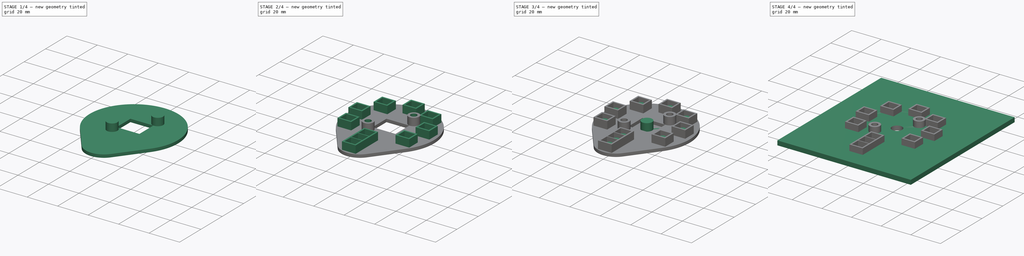
[diagram: build sequence overview — one tinted view per stage of 4, left to right]
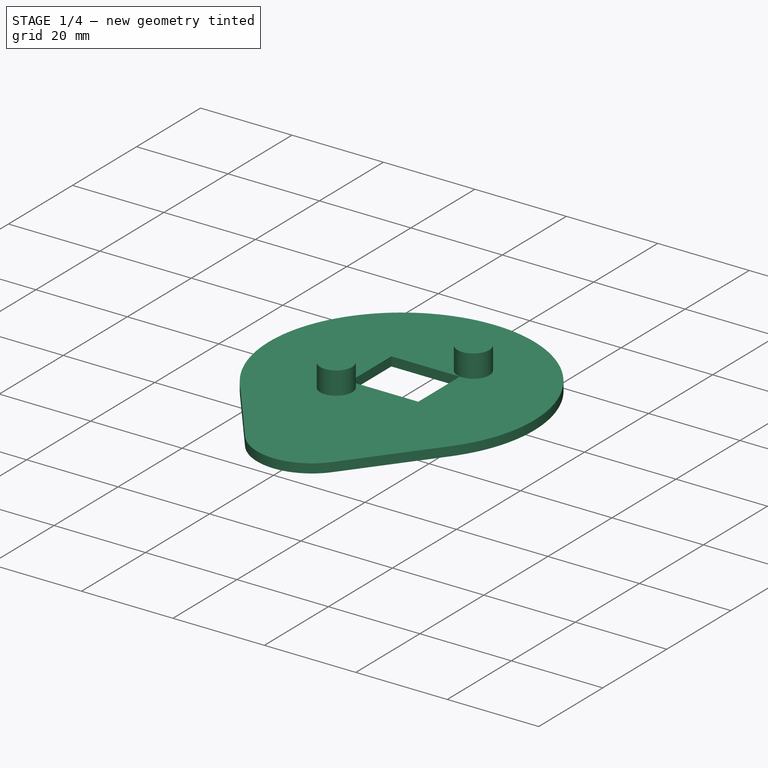
[diagram: stage 1 of 4 — iso view after this stage's code; geometry added in this stage tinted green]
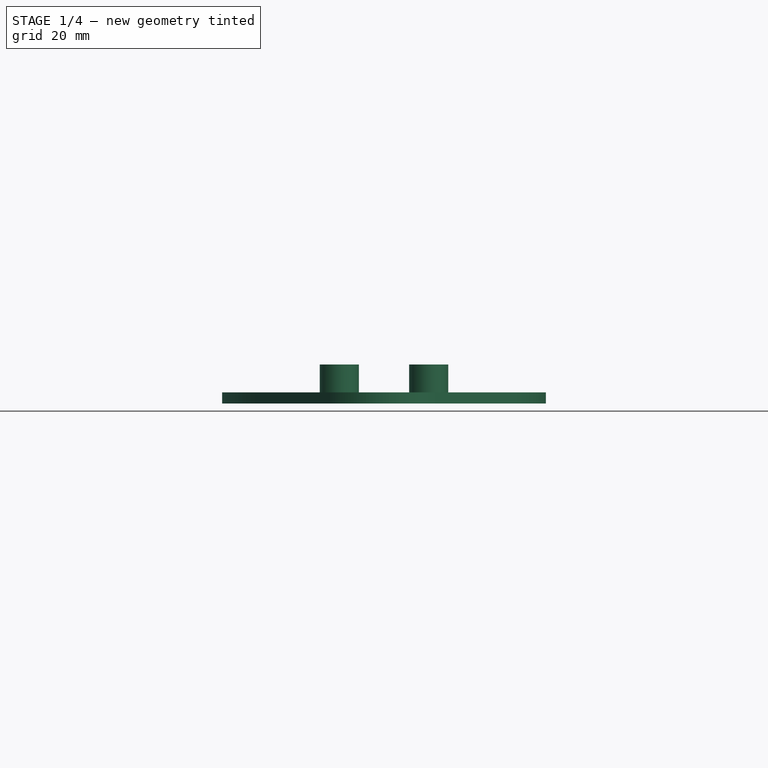
[diagram: stage 1 of 4 — front view after this stage's code; geometry added in this stage tinted green]
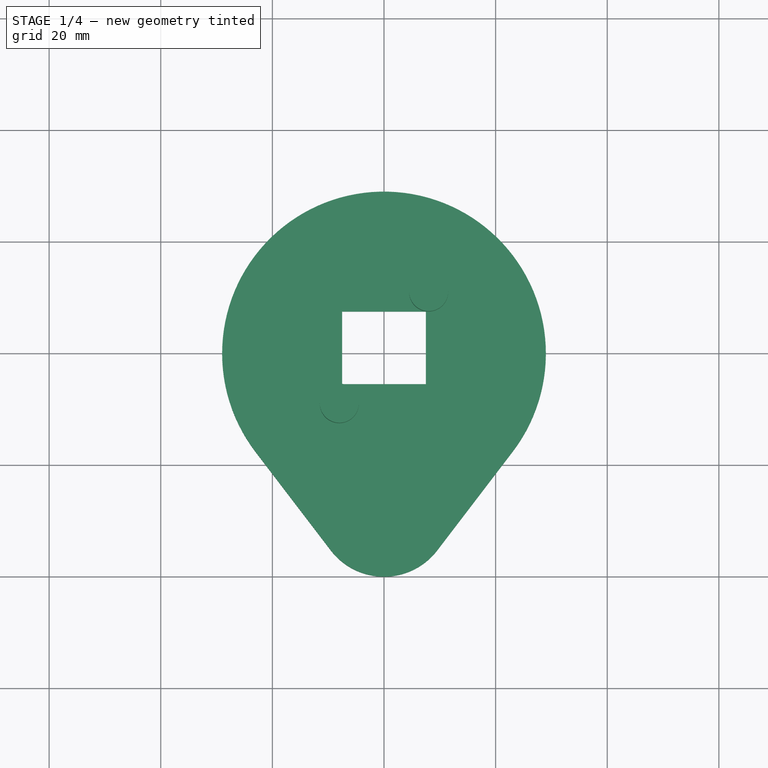
[diagram: stage 1 of 4 — top view after this stage's code; geometry added in this stage tinted green]
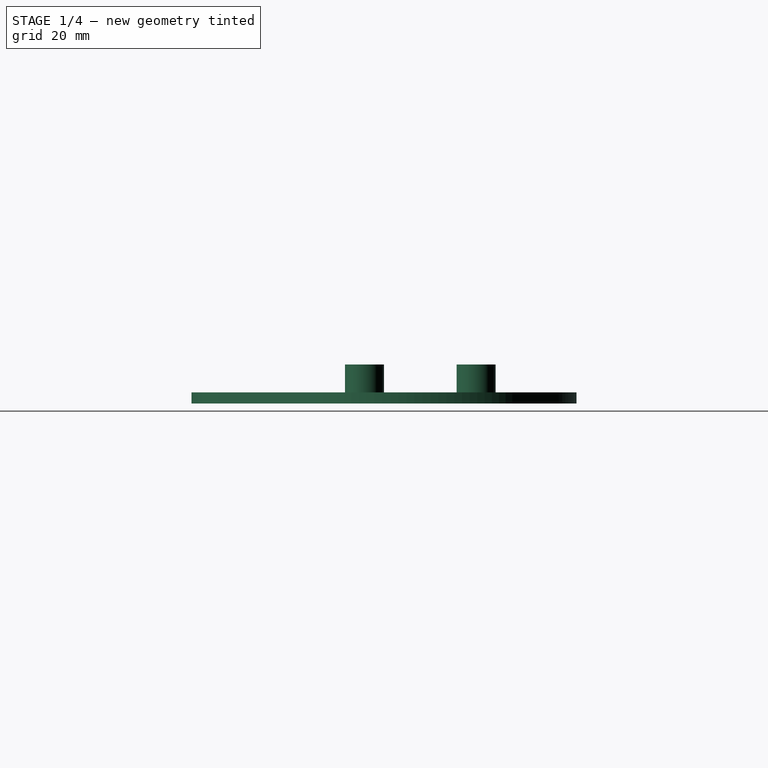
[diagram: stage 1 of 4 — right view after this stage's code; geometry added in this stage tinted green]
FCSTD DOCUMENT  (FreeCAD 1.0R39285 (Git))
Label: djflab
License: All rights reserved
LicenseURL: http://en.wikipedia.org/wiki/All_rights_reserved
objects: Part::Feature×23, Sketcher::SketchObject×10, PartDesign::Pad×6, PartDesign::Pocket×3, PartDesign::Body×3, PartDesign::SubShapeBinder×2, PartDesign::Hole×2, Image::ImagePlane×1, PartDesign::Boolean×1, App::Part×1
note: 83 computed .brp shape members not serialized (recipe doc carries the construction recipe); baked Part::Feature solids carry a one-line shape summary decoded from their .brp

FEATURE [PartDesign::Body] Body001  label="Plate"
  AllowCompound = true
  Group = -> [Sketch003,Pad002,Boolean]
  Origin = -> Origin001
  Tip = -> Boolean
FEATURE [Part::Feature] Part__Feature  label="LED_WS2812B_PLCC4_5.0x5.0mm_P3.2mm"
  Placement = pos=(-15,16.5,1.595) rot=(0,0,1;3.14159rad)
  shape: bbox 5.4 x 5 x 1.6 mm, 68 faces (baked)
FEATURE [Part::Feature] Part__Feature001  label="LED_WS2812B_PLCC4_5.0x5.0mm_P3.2mm001"
  Placement = pos=(0,22.25,1.595) rot=(0,0,1;3.14159rad)
  shape: bbox 5.4 x 5 x 1.6 mm, 68 faces (baked)
FEATURE [Part::Feature] Part__Feature002  label="Rotary Encoder"
  Placement = pos=(-6,7,1.595) rot=(1,0,0;1.5708rad)
  shape: bbox 14.8 x 12 x 29.7 mm, 113 faces, 2 solids (baked)
FEATURE [Part::Feature] Part__Feature003  label="LED_WS2812B_PLCC4_5.0x5.0mm_P3.2mm002"
  Placement = pos=(0,-34.5,1.595) rot=(0,0,1;0rad)
  shape: bbox 5.4 x 5 x 1.6 mm, 68 faces (baked)
FEATURE [Part::Feature] Part__Feature004  label="LED_WS2812B_PLCC4_5.0x5.0mm_P3.2mm003"
  Placement = pos=(22,3,1.595) rot=(0,0,1;0rad)
  shape: bbox 5.4 x 5 x 1.6 mm, 68 faces (baked)
FEATURE [Part::Feature] Part__Feature005  label="R_0805_2012Metric"
  Placement = pos=(-21.5,-18.25,1.595) rot=(0,0,1;1.5708rad)
  shape: bbox 1.2 x 2 x 0.45 mm, 26 faces (baked)
FEATURE [Part::Feature] Part__Feature006  label="R_0805_2012Metric001"
  Placement = pos=(10.5,3.5,1.595) rot=(0,0,1;3.14159rad)
  shape: bbox 2 x 1.2 x 0.45 mm, 26 faces (baked)
FEATURE [Part::Feature] Part__Feature007  label="LED_WS2812B_PLCC4_5.0x5.0mm_P3.2mm004"
  Placement = pos=(-19,-11.5,1.595) rot=(0,0,1;3.14159rad)
  shape: bbox 5.4 x 5 x 1.6 mm, 68 faces (baked)
FEATURE [Part::Feature] Part__Feature008  label="LED_WS2812B_PLCC4_5.0x5.0mm_P3.2mm005"
  Placement = pos=(19,-11.5,1.595) rot=(0,0,1;0rad)
  shape: bbox 5.4 x 5 x 1.6 mm, 68 faces (baked)
FEATURE [Part::Feature] Part__Feature009  label="LED_WS2812B_PLCC4_5.0x5.0mm_P3.2mm006"
  Placement = pos=(0,-28,1.595) rot=(0,0,1;0rad)
  shape: bbox 5.4 x 5 x 1.6 mm, 68 faces (baked)
FEATURE [Part::Feature] Part__Feature010  label="R_0805_2012Metric002"
  Placement = pos=(-11,3.5,1.595) rot=(0,0,1;0rad)
  shape: bbox 2 x 1.2 x 0.45 mm, 26 faces (baked)
FEATURE [Part::Feature] Part__Feature011  label="R_0805_2012Metric003"
  Placement = pos=(-11,6,1.595) rot=(0,0,1;3.14159rad)
  shape: bbox 2 x 1.2 x 0.45 mm, 26 faces (baked)
FEATURE [Part::Feature] Part__Feature012  label="LED_WS2812B_PLCC4_5.0x5.0mm_P3.2mm007"
  Placement = pos=(-22,3,1.595) rot=(0,0,1;3.14159rad)
  shape: bbox 5.4 x 5 x 1.6 mm, 68 faces (baked)
FEATURE [Part::Feature] Part__Feature013  label="LED_WS2812B_PLCC4_5.0x5.0mm_P3.2mm008"
  Placement = pos=(15,16.5,1.595) rot=(0,0,1;0rad)
  shape: bbox 5.4 x 5 x 1.6 mm, 68 faces (baked)
FEATURE [Part::Feature] Part__Feature014  label="R_0805_2012Metric004"
  Placement = pos=(-11,-4,1.595) rot=(0,0,1;3.14159rad)
  shape: bbox 2 x 1.2 x 0.45 mm, 26 faces (baked)
FEATURE [Part::Feature] Part__Feature015  label="R_0805_2012Metric005"
  Placement = pos=(-11,-1.5,1.595) rot=(0,0,1;0rad)
  shape: bbox 2 x 1.2 x 0.45 mm, 26 faces (baked)
FEATURE [Part::Feature] Part__Feature016  label="LED_WS2812B_PLCC4_5.0x5.0mm_P3.2mm009"
  Placement = pos=(0,-21.5,1.595) rot=(0,0,1;0rad)
  shape: bbox 5.4 x 5 x 1.6 mm, 68 faces (baked)
FEATURE [Part::Feature] Part__Feature017  label="R_0805_2012Metric006"
  Placement = pos=(10.5,-1.5,1.595) rot=(0,0,1;3.14159rad)
  shape: bbox 2 x 1.2 x 0.45 mm, 26 faces (baked)
FEATURE [Part::Feature] Part__Feature018  label="JST_XH_S6B-XH-A_1x06_P2.50mm_Horizontal"
  Placement = pos=(-11,-21.5,-0.085) rot=(0.707107,0.707107,0;3.14159rad)
  shape: bbox 11.5 x 17.4 x 9.5 mm, 221 faces (baked)
FEATURE [Part::Feature] Part__Feature019  label="JST_XH_S3B-XH-A_1x03_P2.50mm_Horizontal"
  Placement = pos=(-11,-33,-0.085) rot=(0.707107,0.707107,0;3.14159rad)
  shape: bbox 11.5 x 9.9 x 9.5 mm, 137 faces (baked)
FEATURE [Part::Feature] Part__Feature020  label="JST_XH_S3B-XH-A_1x03_P2.50mm_Horizontal001"
  Placement = pos=(11,-28,-0.085) rot=(0.707107,-0.707107,0;3.14159rad)
  shape: bbox 11.5 x 9.9 x 9.5 mm, 137 faces (baked)
FEATURE [Part::Feature] Part__Feature021  label="djfab-pcb_silkscreen"
  shape: bbox 51.77 x 70.57 x 1.66 mm, 213 faces, 0 solids (baked)
FEATURE [Part::Feature] Part__Feature022  label="djfab-pcb_PCB"
  shape: bbox 60 x 75 x 1.51 mm, 85 faces (baked)
FEATURE [App::Part] djfab_pcb_1  label="djfab-pcb 1"
  Group = -> [Part__Feature,Part__Feature001,Part__Feature002,Part__Feature003,Part__Feature004,Part__Feature005,Part__Feature006,Part__Feature007,Part__Feature008,Part__Feature009,Part__Feature010,Part__Feature011,Part__Feature012,Part__Feature013,Part__Feature014,Part__Feature015,Part__Feature016,Part__Feature017,Part__Feature018,Part__Feature019,Part__Feature020,Part__Feature021,Part__Feature022]
  Origin = -> Origin002
  Placement = pos=(0,0,-8.6) rot=(0,0,1;0rad)
FEATURE [Sketcher::SketchObject] Sketch004
  ArcFitTolerance = 1e-06
  AttachmentSupport = -> [XY_Plane003]
  FullyConstrained = true
  MakeInternals = false
  MapMode = 5
  sketch-geometry (4):
    g0: LineSegment StartX=23.0432 StartY=-17.6071 StartZ=0 EndX=9.53511 EndY=-35.2857 EndZ=0
    g1: ArcOfCircle CenterX=0 CenterY=-28 CenterZ=0 NormalX=0 NormalY=0 NormalZ=1 AngleXU=0 Radius=12 StartAngle=3.79405 EndAngle=5.63073
    g2: LineSegment StartX=-9.53511 StartY=-35.2857 StartZ=0 EndX=-23.0432 EndY=-17.6071 EndZ=0
    g3: ArcOfCircle CenterX=0 CenterY=0 CenterZ=0 NormalX=0 NormalY=0 NormalZ=1 AngleXU=0 Radius=29 StartAngle=5.63073 EndAngle=10.0772
  constraints (10):
    c: Tangent(g0,g1) = 1.5708
    c: Tangent(g1,g2) = 1.5708
    c: Tangent(g2,g3) = 1.5708
    c: PointOnObject(g3,g-2)
    c: Tangent(g3,g0) = 1.5708
    c: PointOnObject(g1,g-2)
    c: Radius(g3) = 29
    c: PointOnObject(g3,g-1)
    c: Radius(g1) = 12
    c: DistanceY(g1,g3) = 28
FEATURE [PartDesign::Pad] Pad003  label="MainPad"
  Direction = (0,0,1)
  Length = 2
  Length2 = 10
  Profile = -> Sketch004
  ReferenceAxis = -> Sketch004 [N_Axis]
  Refine = true
  Suppressed = false
  Type = 0
FEATURE [Sketcher::SketchObject] Sketch005
  ArcFitTolerance = 1e-06
  AttachmentSupport = -> [Pad003]
  FullyConstrained = true
  MakeInternals = false
  MapMode = 5
  Placement = pos=(0,0,2) rot=(0,0,1;0rad)
  sketch-geometry (5):
    g0: LineSegment StartX=-7.5 StartY=-5.5 StartZ=0 EndX=7.5 EndY=-5.5 EndZ=0
    g1: LineSegment StartX=7.5 StartY=-5.5 StartZ=0 EndX=7.5 EndY=7.5 EndZ=0
    g2: LineSegment StartX=7.5 StartY=7.5 StartZ=0 EndX=-7.5 EndY=7.5 EndZ=0
    g3: LineSegment StartX=-7.5 StartY=7.5 StartZ=0 EndX=-7.5 EndY=-5.5 EndZ=0
    g4: GeomPoint [constr] X=0 Y=1 Z=0
  constraints (13):
    c: Coincident(g0,g1)
    c: Coincident(g1,g2)
    c: Coincident(g2,g3)
    c: Coincident(g3,g0)
    c: Horizontal(g0)
    c: Horizontal(g2)
    c: Vertical(g1)
    c: Vertical(g3)
    c: Symmetric(g2,g0,g4)
    c: Distance(g1,g3) = 15
    c: Distance(g0,g2) = 13
    c: PointOnObject(g4,g-2)
    c: DistanceY(g-1,g4) = 1
FEATURE [PartDesign::Pocket] Pocket001  label="EncoderPocket"
  BaseFeature = -> Pad003
  Direction = (0,0,-1)
  Length = 5
  Length2 = 5
  Profile = -> Sketch005
  ReferenceAxis = -> Sketch005 [N_Axis]
  Refine = true
  Suppressed = false
  Type = 1
FEATURE [Sketcher::SketchObject] Sketch006
  ArcFitTolerance = 1e-06
  AttachmentSupport = -> [Pocket001]
  FullyConstrained = true
  MakeInternals = false
  MapMode = 5
  Placement = pos=(0,0,2) rot=(0,0,1;0rad)
  sketch-geometry (7):
    g0: Circle CenterX=8 CenterY=11 CenterZ=0 NormalX=0 NormalY=0 NormalZ=1 AngleXU=0 Radius=3.5
    g1: Circle CenterX=-8 CenterY=-9 CenterZ=0 NormalX=0 NormalY=0 NormalZ=1 AngleXU=0 Radius=3.5
    g2: LineSegment [constr] StartX=-8 StartY=-9 StartZ=0 EndX=8 EndY=-9 EndZ=0
    g3: LineSegment [constr] StartX=8 StartY=-9 StartZ=0 EndX=8 EndY=11 EndZ=0
    g4: LineSegment [constr] StartX=8 StartY=11 StartZ=0 EndX=-8 EndY=11 EndZ=0
    g5: LineSegment [constr] StartX=-8 StartY=11 StartZ=0 EndX=-8 EndY=-9 EndZ=0
    g6: GeomPoint [constr] X=0 Y=1 Z=0
  constraints (17):
    c: Diameter(g0) = 7
    c: Coincident(g2,g3)
    c: Coincident(g3,g4)
    c: Coincident(g4,g5)
    c: Coincident(g5,g2)
    c: Horizontal(g2)
    c: Horizontal(g4)
    c: Vertical(g3)
    c: Vertical(g5)
    c: Symmetric(g4,g2,g6)
    c: PointOnObject(g6,g-2)
    c: DistanceY(g-1,g6) = 1
    c: Coincident(g3,g0)
    c: Coincident(g1,g2)
    c: DistanceX(g2,g2) = 16
    c: DistanceY(g5,g5) = 20
    c: Equal(g1,g0)
FEATURE [PartDesign::Pad] Pad004  label="SpacerPad"
  BaseFeature = -> Pocket001
  Direction = (0,0,1)
  Length = 5
  Length2 = 10
  Profile = -> Sketch006
  ReferenceAxis = -> Sketch006 [N_Axis]
  Refine = true
  Suppressed = false
  Type = 0
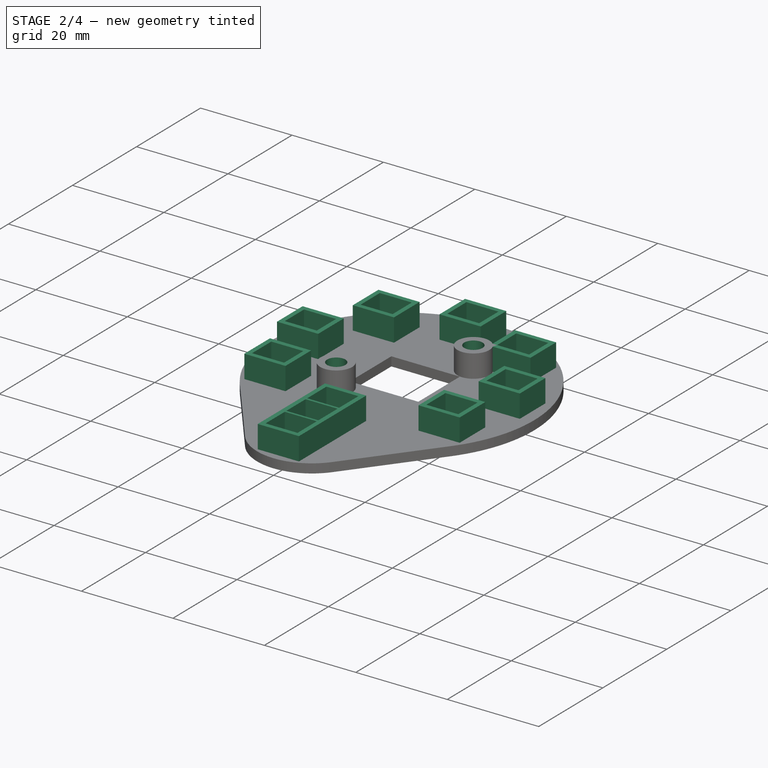
[diagram: stage 2 of 4 — iso view after this stage's code; geometry added in this stage tinted green]
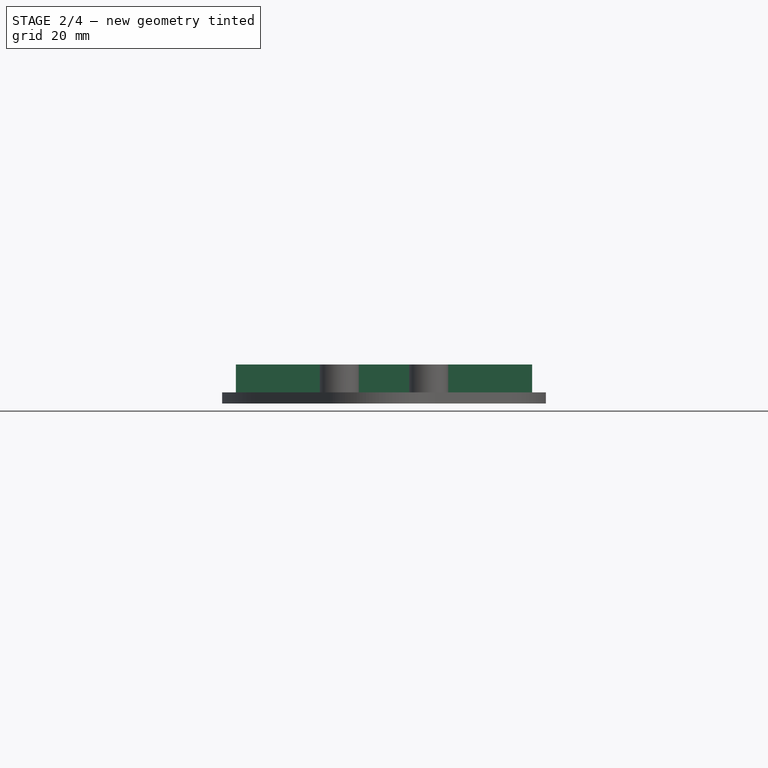
[diagram: stage 2 of 4 — front view after this stage's code; geometry added in this stage tinted green]
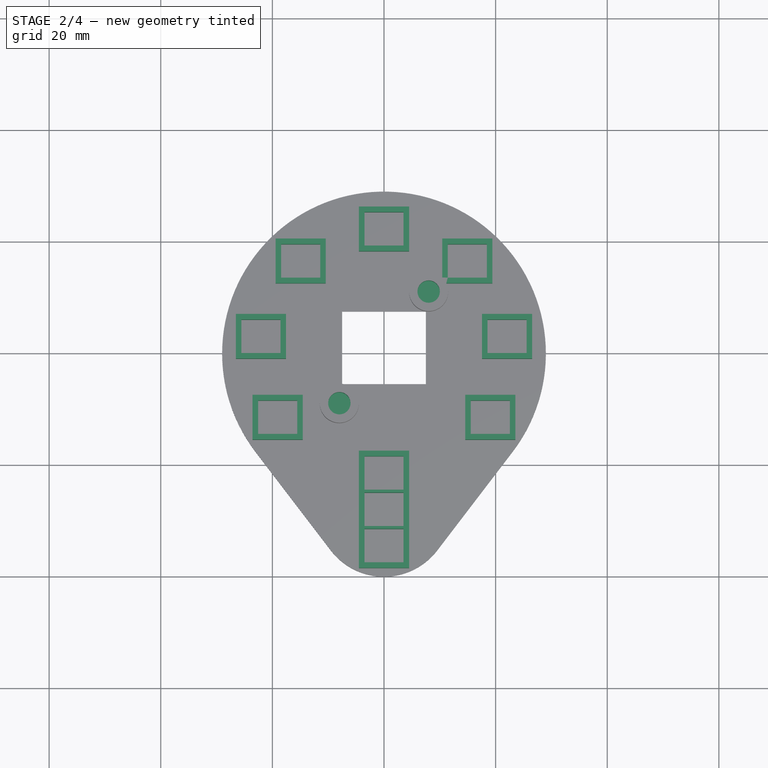
[diagram: stage 2 of 4 — top view after this stage's code; geometry added in this stage tinted green]
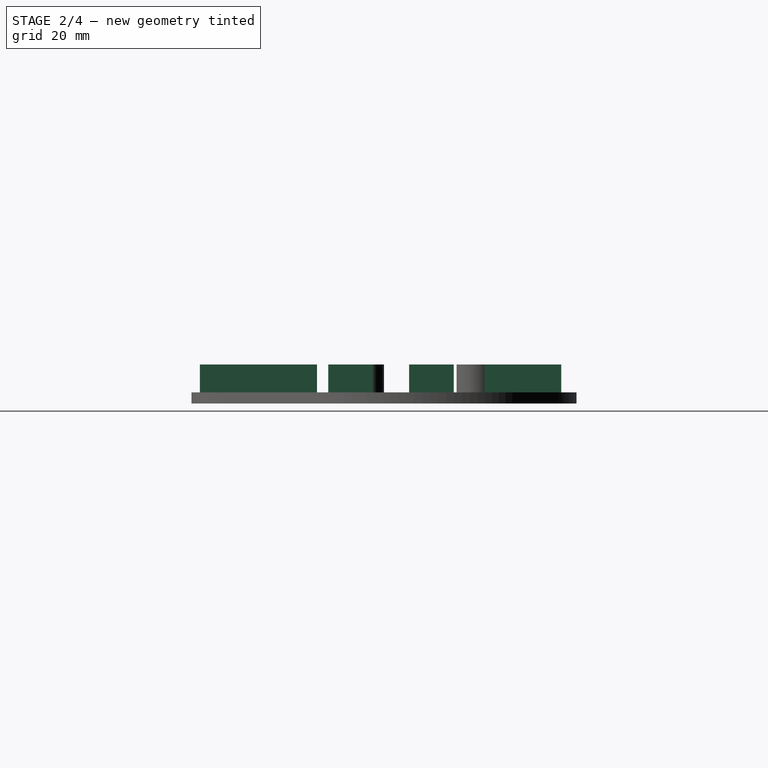
[diagram: stage 2 of 4 — right view after this stage's code; geometry added in this stage tinted green]
FEATURE [Sketcher::SketchObject] Sketch007
  ArcFitTolerance = 1e-06
  AttachmentSupport = -> [XY_Plane003]
  FullyConstrained = true
  MakeInternals = false
  MapMode = 5
  sketch-geometry (11):
    g0: Circle CenterX=19.0476 CenterY=-11.5 CenterZ=0 NormalX=0 NormalY=0 NormalZ=1 AngleXU=0 Radius=5
    g1: Circle CenterX=22.0468 CenterY=3 CenterZ=0 NormalX=0 NormalY=0 NormalZ=1 AngleXU=0 Radius=5
    g2: Circle CenterX=14.9269 CenterY=16.5 CenterZ=0 NormalX=0 NormalY=0 NormalZ=1 AngleXU=0 Radius=5
    g3: Circle CenterX=0 CenterY=22.25 CenterZ=0 NormalX=0 NormalY=0 NormalZ=1 AngleXU=0 Radius=5
    g4: Circle CenterX=-14.9269 CenterY=16.5 CenterZ=0 NormalX=0 NormalY=0 NormalZ=1 AngleXU=0 Radius=5
    g5: Circle CenterX=-22.0468 CenterY=3 CenterZ=0 NormalX=0 NormalY=0 NormalZ=1 AngleXU=0 Radius=5
    g6: Circle CenterX=-19.0476 CenterY=-11.5 CenterZ=0 NormalX=0 NormalY=0 NormalZ=1 AngleXU=0 Radius=5
    g7: Circle [constr] CenterX=0 CenterY=0 CenterZ=0 NormalX=0 NormalY=0 NormalZ=1 AngleXU=0 Radius=22.25
    g8: Circle CenterX=0 CenterY=-21.5 CenterZ=0 NormalX=0 NormalY=0 NormalZ=1 AngleXU=0 Radius=5
    g9: Circle CenterX=0 CenterY=-28 CenterZ=0 NormalX=0 NormalY=0 NormalZ=1 AngleXU=0 Radius=5
    g10: Circle CenterX=0 CenterY=-34.5 CenterZ=0 NormalX=0 NormalY=0 NormalZ=1 AngleXU=0 Radius=5
  constraints (32):
    c: PointOnObject(g3,g-2)
    c: Equal(g0,g1)
    c: Equal(g1,g2)
    c: Equal(g2,g3)
    c: Equal(g3,g4)
    c: Equal(g4,g5)
    c: Equal(g5,g6)
    c: Diameter(g0) = 10
    c: PointOnObject(g7,g-2)
    c: PointOnObject(g3,g7)
    c: PointOnObject(g4,g7)
    c: PointOnObject(g2,g7)
    c: PointOnObject(g5,g7)
    c: PointOnObject(g1,g7)
    c: Horizontal(g5,g1)
    c: Horizontal(g6,g0)
    c: Horizontal(g4,g2)
    c: PointOnObject(g6,g7)
    c: PointOnObject(g8,g-2)
    c: PointOnObject(g10,g-2)
    c: DistanceY(g10,g8) = 13
    c: Equal(g8,g9)
    c: Equal(g9,g10)
    c: Equal(g8,g0)
    c: Symmetric(g10,g8,g9)
    c: Diameter(g7) = 44.5
    c: DistanceY(g7,g5) = 3
    c: DistanceY(g8,g7) = 21.5
    c: PointOnObject(g7,g-1)
    c: PointOnObject(g0,g7)
    c: DistanceY(g6,g-1) = 11.5
    c: DistanceY(g7,g4) = 16.5
FEATURE [Sketcher::SketchObject] Sketch009
  ArcFitTolerance = 1e-06
  AttachmentSupport = -> [Pad004]
  ExternalGeometry = -> [Pad004]
  FullyConstrained = true
  MakeInternals = false
  MapMode = 5
  Placement = pos=(0,0,7) rot=(0,0,1;0rad)
  sketch-geometry (2):
    g0: Circle CenterX=-8 CenterY=-9 CenterZ=0 NormalX=0 NormalY=0 NormalZ=1 AngleXU=0 Radius=2
    g1: Circle CenterX=8 CenterY=11 CenterZ=0 NormalX=0 NormalY=0 NormalZ=1 AngleXU=0 Radius=2
  constraints (4):
    c: Coincident(g0,g-3)
    c: Diameter(g1) = 4
    c: Coincident(g1,g-4)
    c: Equal(g0,g1)
FEATURE [PartDesign::Hole] Hole  label="SpacerHole"
  BaseFeature = -> Pad004
  CustomThreadClearance = 0
  Depth = 4
  DepthType = 0
  Diameter = 4
  DrillForDepth = false
  DrillPoint = 0
  DrillPointAngle = 118
  HoleCutCountersinkAngle = 90
  HoleCutCustomValues = false
  HoleCutDepth = 0
  HoleCutDiameter = 6.1
  HoleCutType = 0
  ModelThread = false
  Profile = -> Sketch009
  Refine = true
  Suppressed = false
  Tapered = false
  TaperedAngle = 90
  ThreadClass = 0
  ThreadDepth = 4
  ThreadDepthType = 0
  ThreadDirection = 0
  ThreadFit = 0
  ThreadSize = 0
  ThreadType = 0
  Threaded = false
  UseCustomThreadClearance = false
FEATURE [PartDesign::Pocket] Pocket002  label="LedPocket"
  BaseFeature = -> Hole
  Direction = (0,0,-1)
  Length = 1.3
  Length2 = 5
  Profile = -> Sketch007
  ReferenceAxis = -> Sketch007 [N_Axis]
  Refine = true
  Reversed = true
  Suppressed = false
  Type = 0
FEATURE [Sketcher::SketchObject] Sketch008
  ArcFitTolerance = 1e-06
  AttachmentSupport = -> [Pocket002]
  ExternalGeometry = -> [Sketch007]
  FullyConstrained = true
  MakeInternals = false
  MapMode = 5
  Placement = pos=(0,0,2) rot=(0,0,1;0rad)
  sketch-geometry (91):
    g0: LineSegment StartX=-4.5 StartY=-38.5 StartZ=0 EndX=4.5 EndY=-38.5 EndZ=0
    g1: LineSegment StartX=4.5 StartY=-38.5 StartZ=0 EndX=4.5 EndY=-17.5 EndZ=0
    g2: LineSegment StartX=4.5 StartY=-17.5 StartZ=0 EndX=-4.5 EndY=-17.5 EndZ=0
    g3: LineSegment StartX=-4.5 StartY=-17.5 StartZ=0 EndX=-4.5 EndY=-38.5 EndZ=0
    g4: GeomPoint [constr] X=0 Y=-28 Z=0
    g5: LineSegment StartX=-4.5 StartY=18.25 StartZ=0 EndX=4.5 EndY=18.25 EndZ=0
    g6: LineSegment StartX=4.5 StartY=18.25 StartZ=0 EndX=4.5 EndY=26.25 EndZ=0
    g7: LineSegment StartX=4.5 StartY=26.25 StartZ=0 EndX=-4.5 EndY=26.25 EndZ=0
    g8: LineSegment StartX=-4.5 StartY=26.25 StartZ=0 EndX=-4.5 EndY=18.25 EndZ=0
    g9: GeomPoint [constr] X=0 Y=22.25 Z=0
    g10: LineSegment StartX=-3.5 StartY=19.25 StartZ=0 EndX=3.5 EndY=19.25 EndZ=0
    g11: LineSegment StartX=3.5 StartY=19.25 StartZ=0 EndX=3.5 EndY=25.25 EndZ=0
    g12: LineSegment StartX=3.5 StartY=25.25 StartZ=0 EndX=-3.5 EndY=25.25 EndZ=0
    g13: LineSegment StartX=-3.5 StartY=25.25 StartZ=0 EndX=-3.5 EndY=19.25 EndZ=0
    g14: GeomPoint [constr] X=0 Y=22.25 Z=0
    g15: LineSegment StartX=10.4269 StartY=12.5 StartZ=0 EndX=19.4269 EndY=12.5 EndZ=0
    g16: LineSegment StartX=19.4269 StartY=12.5 StartZ=0 EndX=19.4269 EndY=20.5 EndZ=0
    g17: LineSegment StartX=19.4269 StartY=20.5 StartZ=0 EndX=10.4269 EndY=20.5 EndZ=0
    g18: LineSegment StartX=10.4269 StartY=20.5 StartZ=0 EndX=10.4269 EndY=12.5 EndZ=0
    g19: GeomPoint [constr] X=14.9269 Y=16.5 Z=0
    g20: LineSegment StartX=11.4269 StartY=13.5 StartZ=0 EndX=18.4269 EndY=13.5 EndZ=0
    g21: LineSegment StartX=18.4269 StartY=13.5 StartZ=0 EndX=18.4269 EndY=19.5 EndZ=0
    g22: LineSegment StartX=18.4269 StartY=19.5 StartZ=0 EndX=11.4269 EndY=19.5 EndZ=0
    g23: LineSegment StartX=11.4269 StartY=19.5 StartZ=0 EndX=11.4269 EndY=13.5 EndZ=0
    g24: GeomPoint [constr] X=14.9269 Y=16.5 Z=0
    g25: LineSegment StartX=17.5468 StartY=-1 StartZ=0 EndX=26.5468 EndY=-1 EndZ=0
    g26: LineSegment StartX=26.5468 StartY=-1 StartZ=0 EndX=26.5468 EndY=7 EndZ=0
    g27: LineSegment StartX=26.5468 StartY=7 StartZ=0 EndX=17.5468 EndY=7 EndZ=0
    g28: LineSegment StartX=17.5468 StartY=7 StartZ=0 EndX=17.5468 EndY=-1 EndZ=0
    g29: GeomPoint [constr] X=22.0468 Y=3 Z=0
    g30: LineSegment StartX=18.5468 StartY=0 StartZ=0 EndX=25.5468 EndY=0 EndZ=0
    g31: LineSegment StartX=25.5468 StartY=0 StartZ=0 EndX=25.5468 EndY=6 EndZ=0
    g32: LineSegment StartX=25.5468 StartY=6 StartZ=0 EndX=18.5468 EndY=6 EndZ=0
    g33: LineSegment StartX=18.5468 StartY=6 StartZ=0 EndX=18.5468 EndY=0 EndZ=0
    g34: GeomPoint [constr] X=22.0468 Y=3 Z=0
    g35: LineSegment StartX=14.5476 StartY=-15.5 StartZ=0 EndX=23.5476 EndY=-15.5 EndZ=0
    g36: LineSegment StartX=23.5476 StartY=-15.5 StartZ=0 EndX=23.5476 EndY=-7.5 EndZ=0
    g37: LineSegment StartX=23.5476 StartY=-7.5 StartZ=0 EndX=14.5476 EndY=-7.5 EndZ=0
    g38: LineSegment StartX=14.5476 StartY=-7.5 StartZ=0 EndX=14.5476 EndY=-15.5 EndZ=0
    g39: GeomPoint [constr] X=19.0476 Y=-11.5 Z=0
    g40: LineSegment StartX=15.5476 StartY=-14.5 StartZ=0 EndX=22.5476 EndY=-14.5 EndZ=0
    g41: LineSegment StartX=22.5476 StartY=-14.5 StartZ=0 EndX=22.5476 EndY=-8.5 EndZ=0
    g42: LineSegment StartX=22.5476 StartY=-8.5 StartZ=0 EndX=15.5476 EndY=-8.5 EndZ=0
    g43: LineSegment StartX=15.5476 StartY=-8.5 StartZ=0 EndX=15.5476 EndY=-14.5 EndZ=0
    g44: GeomPoint [constr] X=19.0476 Y=-11.5 Z=0
    g45: LineSegment StartX=-23.5476 StartY=-15.5 StartZ=0 EndX=-14.5476 EndY=-15.5 EndZ=0
    g46: LineSegment StartX=-14.5476 StartY=-15.5 StartZ=0 EndX=-14.5476 EndY=-7.5 EndZ=0
    g47: LineSegment StartX=-14.5476 StartY=-7.5 StartZ=0 EndX=-23.5476 EndY=-7.5 EndZ=0
    g48: LineSegment StartX=-23.5476 StartY=-7.5 StartZ=0 EndX=-23.5476 EndY=-15.5 EndZ=0
    g49: GeomPoint [constr] X=-19.0476 Y=-11.5 Z=0
    g50: LineSegment StartX=-22.5476 StartY=-14.5 StartZ=0 EndX=-15.5476 EndY=-14.5 EndZ=0
    g51: LineSegment StartX=-15.5476 StartY=-14.5 StartZ=0 EndX=-15.5476 EndY=-8.5 EndZ=0
    g52: LineSegment StartX=-15.5476 StartY=-8.5 StartZ=0 EndX=-22.5476 EndY=-8.5 EndZ=0
    g53: LineSegment StartX=-22.5476 StartY=-8.5 StartZ=0 EndX=-22.5476 EndY=-14.5 EndZ=0
    g54: GeomPoint [constr] X=-19.0476 Y=-11.5 Z=0
    g55: LineSegment StartX=-26.5468 StartY=-1 StartZ=0 EndX=-17.5468 EndY=-1 EndZ=0
    g56: LineSegment StartX=-17.5468 StartY=-1 StartZ=0 EndX=-17.5468 EndY=7 EndZ=0
    g57: LineSegment StartX=-17.5468 StartY=7 StartZ=0 EndX=-26.5468 EndY=7 EndZ=0
    g58: LineSegment StartX=-26.5468 StartY=7 StartZ=0 EndX=-26.5468 EndY=-1 EndZ=0
    g59: GeomPoint [constr] X=-22.0468 Y=3 Z=0
    g60: LineSegment StartX=-25.5468 StartY=0 StartZ=0 EndX=-18.5468 EndY=0 EndZ=0
    g61: LineSegment StartX=-18.5468 StartY=0 StartZ=0 EndX=-18.5468 EndY=6 EndZ=0
    g62: LineSegment StartX=-18.5468 StartY=6 StartZ=0 EndX=-25.5468 EndY=6 EndZ=0
    g63: LineSegment StartX=-25.5468 StartY=6 StartZ=0 EndX=-25.5468 EndY=0 EndZ=0
    g64: GeomPoint [constr] X=-22.0468 Y=3 Z=0
    g65: LineSegment StartX=-19.4269 StartY=12.5 StartZ=0 EndX=-10.4269 EndY=12.5 EndZ=0
    g66: LineSegment StartX=-10.4269 StartY=12.5 StartZ=0 EndX=-10.4269 EndY=20.5 EndZ=0
    g67: LineSegment StartX=-10.4269 StartY=20.5 StartZ=0 EndX=-19.4269 EndY=20.5 EndZ=0
    g68: LineSegment StartX=-19.4269 StartY=20.5 StartZ=0 EndX=-19.4269 EndY=12.5 EndZ=0
    g69: GeomPoint [constr] X=-14.9269 Y=16.5 Z=0
    g70: LineSegment StartX=-18.4269 StartY=13.5 StartZ=0 EndX=-11.4269 EndY=13.5 EndZ=0
    g71: LineSegment StartX=-11.4269 StartY=13.5 StartZ=0 EndX=-11.4269 EndY=19.5 EndZ=0
    g72: LineSegment StartX=-11.4269 StartY=19.5 StartZ=0 EndX=-18.4269 EndY=19.5 EndZ=0
    g73: LineSegment StartX=-18.4269 StartY=19.5 StartZ=0 EndX=-18.4269 EndY=13.5 EndZ=0
    g74: GeomPoint [constr] X=-14.9269 Y=16.5 Z=0
    g75: LineSegment StartX=-3.5 StartY=-24.5 StartZ=0 EndX=3.5 EndY=-24.5 EndZ=0
    g76: LineSegment StartX=3.5 StartY=-24.5 StartZ=0 EndX=3.5 EndY=-18.5 EndZ=0
    g77: LineSegment StartX=3.5 StartY=-18.5 StartZ=0 EndX=-3.5 EndY=-18.5 EndZ=0
    g78: LineSegment StartX=-3.5 StartY=-18.5 StartZ=0 EndX=-3.5 EndY=-24.5 EndZ=0
    g79: GeomPoint [constr] X=0 Y=-21.5 Z=0
    g80: LineSegment StartX=-3.5 StartY=-31 StartZ=0 EndX=3.5 EndY=-31 EndZ=0
    g81: LineSegment StartX=3.5 StartY=-31 StartZ=0 EndX=3.5 EndY=-25 EndZ=0
    g82: LineSegment StartX=3.5 StartY=-25 StartZ=0 EndX=-3.5 EndY=-25 EndZ=0
    g83: LineSegment StartX=-3.5 StartY=-25 StartZ=0 EndX=-3.5 EndY=-31 EndZ=0
    g84: GeomPoint [constr] X=0 Y=-28 Z=0
    g85: LineSegment StartX=-3.5 StartY=-37.5 StartZ=0 EndX=3.5 EndY=-37.5 EndZ=0
    g86: LineSegment StartX=3.5 StartY=-37.5 StartZ=0 EndX=3.5 EndY=-31.5 EndZ=0
    g87: LineSegment StartX=3.5 StartY=-31.5 StartZ=0 EndX=-3.5 EndY=-31.5 EndZ=0
    g88: LineSegment StartX=-3.5 StartY=-31.5 StartZ=0 EndX=-3.5 EndY=-37.5 EndZ=0
    g89: GeomPoint [constr] X=0 Y=-34.5 Z=0
    g90: LineSegment [constr] StartX=-4.5 StartY=-38.5 StartZ=0 EndX=-3.5 EndY=-37.5 EndZ=0
  constraints (218):
    c: Coincident(g0,g1)
    c: Coincident(g1,g2)
    c: Coincident(g2,g3)
    c: Coincident(g3,g0)
    c: Horizontal(g0)
    c: Horizontal(g2)
    c: Vertical(g1)
    c: Vertical(g3)
    c: Symmetric(g2,g0,g4)
    c: Coincident(g5,g6)
    c: Coincident(g6,g7)
    c: Coincident(g7,g8)
    c: Coincident(g8,g5)
    c: Horizontal(g5)
    c: Horizontal(g7)
    c: Vertical(g6)
    c: Vertical(g8)
    c: Symmetric(g7,g5,g9)
    c: Coincident(g10,g11)
    c: Coincident(g11,g12)
    c: Coincident(g12,g13)
    c: Coincident(g13,g10)
    c: Horizontal(g10)
    c: Horizontal(g12)
    c: Vertical(g11)
    c: Vertical(g13)
    c: Symmetric(g12,g10,g14)
    c: Coincident(g14,g9)
    c: DistanceX(g7,g7) = 9
    c: Coincident(g15,g16)
    c: Coincident(g16,g17)
    c: Coincident(g17,g18)
    c: Coincident(g18,g15)
    c: Horizontal(g15)
    c: Horizontal(g17)
    c: Vertical(g16)
    c: Vertical(g18)
    c: Symmetric(g17,g15,g19)
    c: Coincident(g20,g21)
    c: Coincident(g21,g22)
    c: Coincident(g22,g23)
    c: Coincident(g23,g20)
    c: Horizontal(g20)
    c: Horizontal(g22)
    c: Vertical(g21)
    c: Vertical(g23)
    c: Symmetric(g22,g20,g24)
    c: Coincident(g24,g19)
    c: Coincident(g25,g26)
    c: Coincident(g26,g27)
    c: Coincident(g27,g28)
    c: Coincident(g28,g25)
    c: Horizontal(g25)
    c: Horizontal(g27)
    c: Vertical(g26)
    c: Vertical(g28)
    c: Symmetric(g27,g25,g29)
    c: Coincident(g30,g31)
    c: Coincident(g31,g32)
    c: Coincident(g32,g33)
    c: Coincident(g33,g30)
    c: Horizontal(g30)
    c: Horizontal(g32)
    c: Vertical(g31)
    c: Vertical(g33)
    c: Symmetric(g32,g30,g34)
    c: Coincident(g34,g29)
    c: Coincident(g35,g36)
    c: Coincident(g36,g37)
    c: Coincident(g37,g38)
    c: Coincident(g38,g35)
    c: Horizontal(g35)
    c: Horizontal(g37)
    c: Vertical(g36)
    c: Vertical(g38)
    c: Symmetric(g37,g35,g39)
    c: Coincident(g40,g41)
    c: Coincident(g41,g42)
    c: Coincident(g42,g43)
    c: Coincident(g43,g40)
    c: Horizontal(g40)
    c: Horizontal(g42)
    c: Vertical(g41)
    c: Vertical(g43)
    c: Symmetric(g42,g40,g44)
    c: Coincident(g44,g39)
    c: Coincident(g45,g46)
    c: Coincident(g46,g47)
    c: Coincident(g47,g48)
    c: Coincident(g48,g45)
    c: Horizontal(g45)
    c: Horizontal(g47)
    c: Vertical(g46)
    c: Vertical(g48)
    c: Symmetric(g47,g45,g49)
    c: Coincident(g50,g51)
    c: Coincident(g51,g52)
    c: Coincident(g52,g53)
    c: Coincident(g53,g50)
    c: Horizontal(g50)
    c: Horizontal(g52)
    c: Vertical(g51)
    c: Vertical(g53)
    c: Symmetric(g52,g50,g54)
    c: Coincident(g54,g49)
    c: Coincident(g55,g56)
    c: Coincident(g56,g57)
    c: Coincident(g57,g58)
    c: Coincident(g58,g55)
    c: Horizontal(g55)
    c: Horizontal(g57)
    c: Vertical(g56)
    c: Vertical(g58)
    c: Symmetric(g57,g55,g59)
    c: Coincident(g60,g61)
    c: Coincident(g61,g62)
    c: Coincident(g62,g63)
    c: Coincident(g63,g60)
    c: Horizontal(g60)
    c: Horizontal(g62)
    c: Vertical(g61)
    c: Vertical(g63)
    c: Symmetric(g62,g60,g64)
    c: Coincident(g64,g59)
    c: Coincident(g65,g66)
    c: Coincident(g66,g67)
    c: Coincident(g67,g68)
    c: Coincident(g68,g65)
    c: Horizontal(g65)
    c: Horizontal(g67)
    c: Vertical(g66)
    c: Vertical(g68)
    c: Symmetric(g67,g65,g69)
    c: Coincident(g70,g71)
    c: Coincident(g71,g72)
    c: Coincident(g72,g73)
    c: Coincident(g73,g70)
    c: Horizontal(g70)
    c: Horizontal(g72)
    c: Vertical(g71)
    c: Vertical(g73)
    c: Symmetric(g72,g70,g74)
    c: Coincident(g74,g69)
    c: Equal(g12,g22)
    c: Equal(g22,g32)
    c: Equal(g32,g42)
    c: Equal(g42,g52)
    c: Equal(g52,g62)
    c: Equal(g62,g72)
    c: Equal(g7,g17)
    c: Equal(g17,g27)
    c: Equal(g27,g37)
    c: Equal(g37,g47)
    c: Equal(g47,g57)
    c: Equal(g57,g67)
    c: Equal(g67,g2)
    c: Coincident(g75,g76)
    c: Coincident(g76,g77)
    c: Coincident(g77,g78)
    c: Coincident(g78,g75)
    c: Horizontal(g75)
    c: Horizontal(g77)
    c: Vertical(g76)
    c: Vertical(g78)
    c: Symmetric(g77,g75,g79)
    c: Coincident(g80,g81)
    c: Coincident(g81,g82)
    c: Coincident(g82,g83)
    c: Coincident(g83,g80)
    c: Horizontal(g80)
    c: Horizontal(g82)
    c: Vertical(g81)
    c: Vertical(g83)
    c: Symmetric(g82,g80,g84)
    c: Coincident(g84,g4)
    c: Coincident(g85,g86)
    c: Coincident(g86,g87)
    c: Coincident(g87,g88)
    c: Coincident(g88,g85)
    c: Horizontal(g85)
    c: Horizontal(g87)
    c: Vertical(g86)
    c: Vertical(g88)
    c: Symmetric(g87,g85,g89)
    c: Equal(g87,g82)
    c: Equal(g82,g77)
    c: Equal(g77,g42)
    c: Coincident(g90,g0)
    c: Coincident(g90,g85)
    c: Angle(g0,g90) = 0.785398
    c: DistanceX(g12,g12) = 7
    c: DistanceY(g13,g13) = 6
    c: Equal(g13,g73)
    c: Equal(g73,g23)
    c: Equal(g23,g63)
    c: Equal(g63,g33)
    c: Equal(g33,g53)
    c: Equal(g53,g43)
    c: Equal(g43,g78)
    c: Equal(g78,g83)
    c: Equal(g83,g88)
    c: Equal(g68,g8)
    c: Equal(g8,g18)
    c: Equal(g18,g58)
    c: Equal(g58,g28)
    c: Equal(g28,g48)
    c: Equal(g48,g38)
    c: DistanceY(g8,g8) = 8
    c: Coincident(g-9,g49)
    c: Coincident(g-8,g39)
    c: Coincident(g-3,g59)
    c: Coincident(g-7,g29)
    c: Coincident(g-4,g69)
    c: Coincident(g-5,g9)
    c: Coincident(g-6,g19)
    c: Coincident(g-10,g79)
    c: Coincident(g-11,g4)
    c: Coincident(g-12,g89)
FEATURE [PartDesign::Pad] Pad005
  BaseFeature = -> Pocket002
  Direction = (0,0,1)
  Length = 5
  Length2 = 10
  Profile = -> Sketch008
  ReferenceAxis = -> Sketch008 [N_Axis]
  Refine = true
  Suppressed = false
  Type = 0
  expr: Length = Pad004.Length
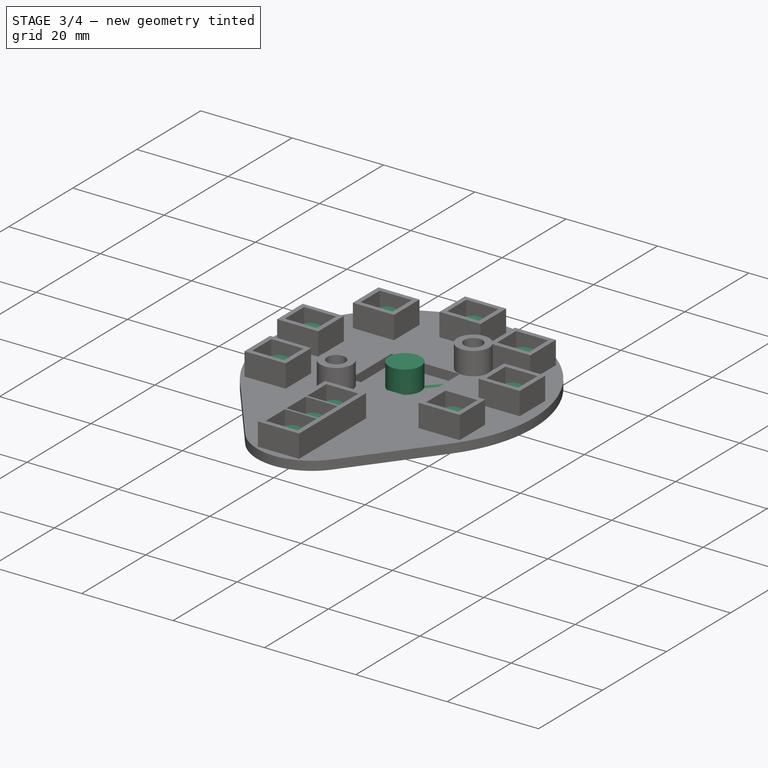
[diagram: stage 3 of 4 — iso view after this stage's code; geometry added in this stage tinted green]
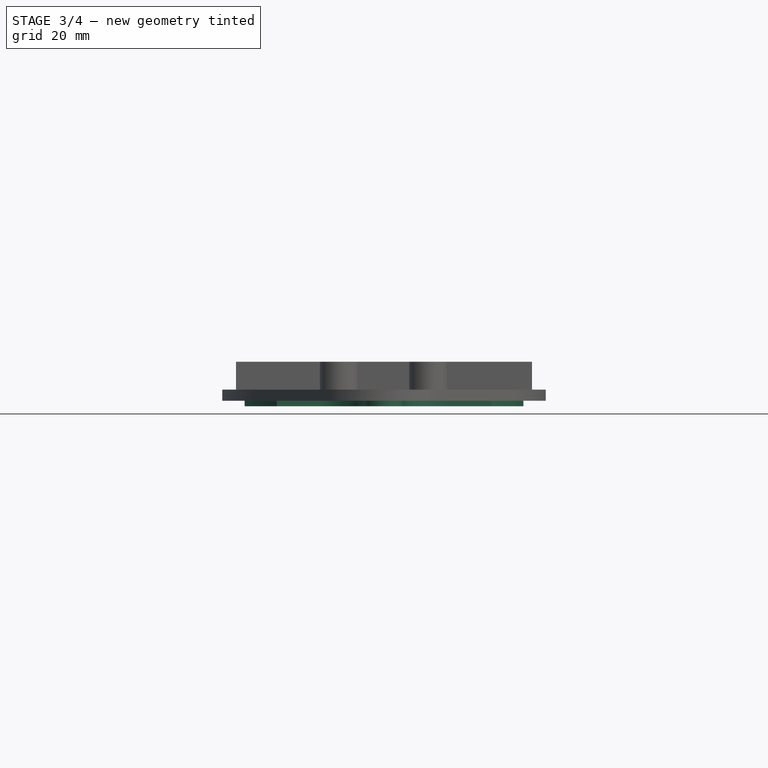
[diagram: stage 3 of 4 — front view after this stage's code; geometry added in this stage tinted green]
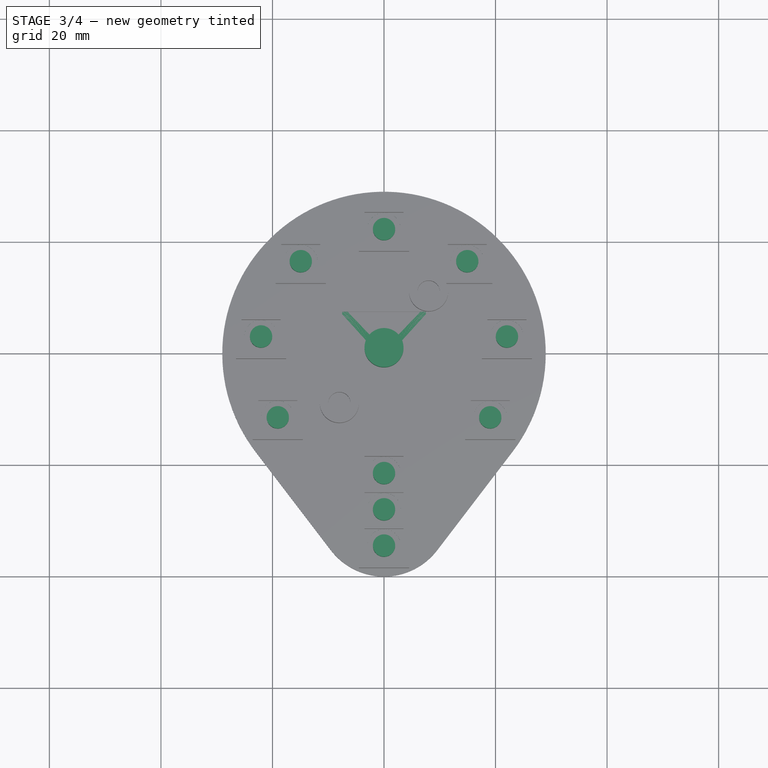
[diagram: stage 3 of 4 — top view after this stage's code; geometry added in this stage tinted green]
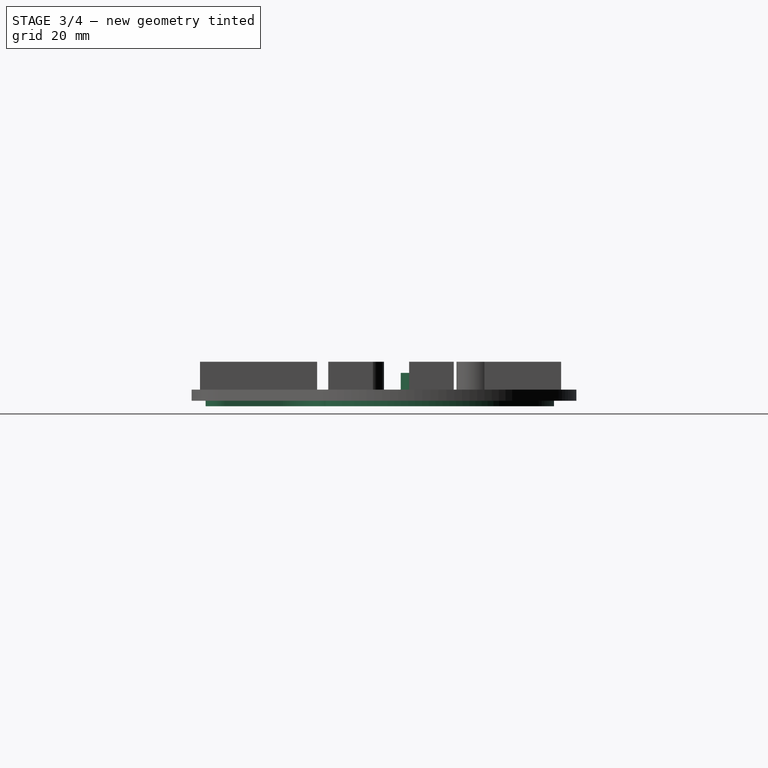
[diagram: stage 3 of 4 — right view after this stage's code; geometry added in this stage tinted green]
FEATURE [Image::ImagePlane] asd
  Placement = pos=(3.3,3,0) rot=(0,0,1;-0.02618rad)
  XSize = 88
  YSize = 90.6328
  expr: YSize = XSize / 247.68 mm * 255.09 mm
FEATURE [Sketcher::SketchObject] Sketch
  ArcFitTolerance = 1e-06
  AttachmentSupport = -> [XY_Plane]
  FullyConstrained = true
  MakeInternals = false
  MapMode = 5
  sketch-geometry (12):
    g0: Circle CenterX=19.0476 CenterY=-11.5 CenterZ=0 NormalX=0 NormalY=0 NormalZ=1 AngleXU=0 Radius=2
    g1: Circle CenterX=22.0468 CenterY=3 CenterZ=0 NormalX=0 NormalY=0 NormalZ=1 AngleXU=0 Radius=2
    g2: Circle CenterX=14.9269 CenterY=16.5 CenterZ=0 NormalX=0 NormalY=0 NormalZ=1 AngleXU=0 Radius=2
    g3: Circle CenterX=0 CenterY=22.25 CenterZ=0 NormalX=0 NormalY=0 NormalZ=1 AngleXU=0 Radius=2
    g4: Circle CenterX=-14.9269 CenterY=16.5 CenterZ=0 NormalX=0 NormalY=0 NormalZ=1 AngleXU=0 Radius=2
    g5: Circle CenterX=-22.0468 CenterY=3 CenterZ=0 NormalX=0 NormalY=0 NormalZ=1 AngleXU=0 Radius=2
    g6: Circle CenterX=-19.0476 CenterY=-11.5 CenterZ=0 NormalX=0 NormalY=0 NormalZ=1 AngleXU=0 Radius=2
    g7: Circle [constr] CenterX=0 CenterY=0 CenterZ=0 NormalX=0 NormalY=0 NormalZ=1 AngleXU=0 Radius=22.25
    g8: Circle CenterX=0 CenterY=-21.5 CenterZ=0 NormalX=0 NormalY=0 NormalZ=1 AngleXU=0 Radius=2
    g9: Circle CenterX=0 CenterY=-28 CenterZ=0 NormalX=0 NormalY=0 NormalZ=1 AngleXU=0 Radius=2
    g10: Circle CenterX=0 CenterY=-34.5 CenterZ=0 NormalX=0 NormalY=0 NormalZ=1 AngleXU=0 Radius=2
    g11: Circle CenterX=0 CenterY=1 CenterZ=0 NormalX=0 NormalY=0 NormalZ=1 AngleXU=0 Radius=3.5
  constraints (35):
    c: PointOnObject(g3,g-2)
    c: Equal(g0,g1)
    c: Equal(g1,g2)
    c: Equal(g2,g3)
    c: Equal(g3,g4)
    c: Equal(g4,g5)
    c: Equal(g5,g6)
    c: Diameter(g0) = 4
    c: PointOnObject(g7,g-2)
    c: PointOnObject(g3,g7)
    c: PointOnObject(g4,g7)
    c: PointOnObject(g2,g7)
    c: PointOnObject(g5,g7)
    c: PointOnObject(g1,g7)
    c: Horizontal(g5,g1)
    c: Horizontal(g6,g0)
    c: Horizontal(g4,g2)
    c: PointOnObject(g6,g7)
    c: PointOnObject(g8,g-2)
    c: PointOnObject(g10,g-2)
    c: DistanceY(g10,g8) = 13
    c: Equal(g8,g9)
    c: Equal(g9,g10)
    c: Equal(g8,g0)
    c: Symmetric(g10,g8,g9)
    c: Diameter(g7) = 44.5
    c: PointOnObject(g11,g-2)
    c: Diameter(g11) = 7
    c: DistanceY(g7,g11) = 1
    c: DistanceY(g7,g5) = 3
    c: DistanceY(g8,g7) = 21.5
    c: PointOnObject(g7,g-1)
    c: PointOnObject(g0,g7)
    c: DistanceY(g6,g-1) = 11.5
    c: DistanceY(g7,g4) = 16.5
FEATURE [PartDesign::Pad] Pad
  Direction = (0,0,1)
  Length = 5
  Length2 = 10
  Profile = -> Sketch
  ReferenceAxis = -> Sketch [N_Axis]
  Refine = true
  Suppressed = false
  Type = 0
FEATURE [Sketcher::SketchObject] Sketch001
  ArcFitTolerance = 1e-06
  AttachmentSupport = -> [XY_Plane]
  FullyConstrained = true
  MakeInternals = false
  MapMode = 5
  sketch-geometry (10):
    g0: ArcOfCircle CenterX=0 CenterY=0 CenterZ=0 NormalX=0 NormalY=0 NormalZ=1 AngleXU=0 Radius=25 StartAngle=5.58869 EndAngle=10.1193
    g1: LineSegment StartX=-19.2094 StartY=-16 StartZ=0 EndX=-11.5 EndY=-16 EndZ=0
    g2: LineSegment StartX=-3.5 StartY=-24 StartZ=0 EndX=-3.5 EndY=-34 EndZ=0
    g3: LineSegment StartX=3.5 StartY=-34 StartZ=0 EndX=3.5 EndY=-24 EndZ=0
    g4: LineSegment StartX=11.5 StartY=-16 StartZ=0 EndX=19.2094 EndY=-16 EndZ=0
    g5: ArcOfCircle CenterX=-11.5 CenterY=-24 CenterZ=0 NormalX=0 NormalY=0 NormalZ=1 AngleXU=0 Radius=8 StartAngle=0 EndAngle=1.5708
    g6: GeomPoint [constr] X=-3.5 Y=-16 Z=0
    g7: ArcOfCircle CenterX=11.5 CenterY=-24 CenterZ=0 NormalX=0 NormalY=0 NormalZ=1 AngleXU=0 Radius=8 StartAngle=1.5708 EndAngle=3.14159
    g8: GeomPoint [constr] X=3.5 Y=-16 Z=0
    g9: ArcOfCircle CenterX=0 CenterY=-34 CenterZ=0 NormalX=0 NormalY=0 NormalZ=1 AngleXU=0 Radius=3.5 StartAngle=3.14159 EndAngle=6.28319
  constraints (26):
    c: Horizontal(g1)
    c: Coincident(g0,g1)
    c: Coincident(g0,g4)
    c: Radius(g0) = 25
    c: DistanceY(g0,g0) = 16
    c: Vertical(g2)
    c: Vertical(g3)
    c: DistanceX(g2,g3) = 7
    c: Horizontal(g4)
    c: DistanceY(g2,g6) = 18
    c: PointOnObject(g0,g-2)
    c: PointOnObject(g6,g1)
    c: PointOnObject(g6,g2)
    c: Tangent(g1,g5) = 1.5708
    c: Tangent(g2,g5) = 1.5708
    c: PointOnObject(g8,g3)
    c: PointOnObject(g8,g4)
    c: Tangent(g3,g7) = 1.5708
    c: Tangent(g4,g7) = 1.5708
    c: Equal(g5,g7)
    c: Symmetric(g2,g3,g-2)
    c: Radius(g5) = 8
    c: Equal(g2,g3)
    c: Coincident(g9,g3)
    c: Tangent(g9,g2) = -1.5708
    c: PointOnObject(g0,g-1)
FEATURE [PartDesign::Pad] Pad001
  BaseFeature = -> Pad
  Direction = (0,0,1)
  Length = 1
  Length2 = 10
  Profile = -> Sketch001
  ReferenceAxis = -> Sketch001 [N_Axis]
  Refine = true
  Reversed = true
  Suppressed = false
  Type = 0
FEATURE [PartDesign::SubShapeBinder] Binder001
  BindCopyOnChange = 0
  BindMode = 0
  ClaimChildren = false
  Context = -> Body002 [Hole001.Binder001.]
  Fuse = false
  MakeFace = true
  OffsetFill = false
  OffsetIntersection = false
  OffsetJoinType = 0
  OffsetOpenResult = false
  PartialLoad = false
  Placement = pos=(0,0,1.5) rot=(0,0,1;0rad)
  Refine = true
  Relative = true
  Support = -> [Sketch007]
  _Version = 2
FEATURE [PartDesign::Hole] Hole001
  BaseFeature = -> Pad005
  CustomThreadClearance = 0
  Depth = 25
  DepthType = 0
  Diameter = 6
  DrillForDepth = false
  DrillPoint = 0
  DrillPointAngle = 118
  HoleCutCountersinkAngle = 90
  HoleCutCustomValues = false
  HoleCutDepth = 0
  HoleCutDiameter = 6.1
  HoleCutType = 0
  ModelThread = false
  Profile = -> Binder001
  Refine = true
  Reversed = true
  Suppressed = false
  Tapered = false
  TaperedAngle = 90
  ThreadClass = 0
  ThreadDepth = 25
  ThreadDepthType = 0
  ThreadDirection = 0
  ThreadFit = 0
  ThreadSize = 0
  ThreadType = 0
  Threaded = false
  UseCustomThreadClearance = false
FEATURE [PartDesign::Body] Body002  label="Shield"
  AllowCompound = true
  Group = -> [Sketch004,Pad003,Sketch005,Pocket001,Sketch006,Pad004,Sketch007,Sketch009,Hole,Pocket002,Sketch008,Pad005,Binder001,Hole001]
  Origin = -> Origin003
  Placement = pos=(0,0,-0.1) rot=(0,1,0;3.14159rad)
  Tip = -> Hole001
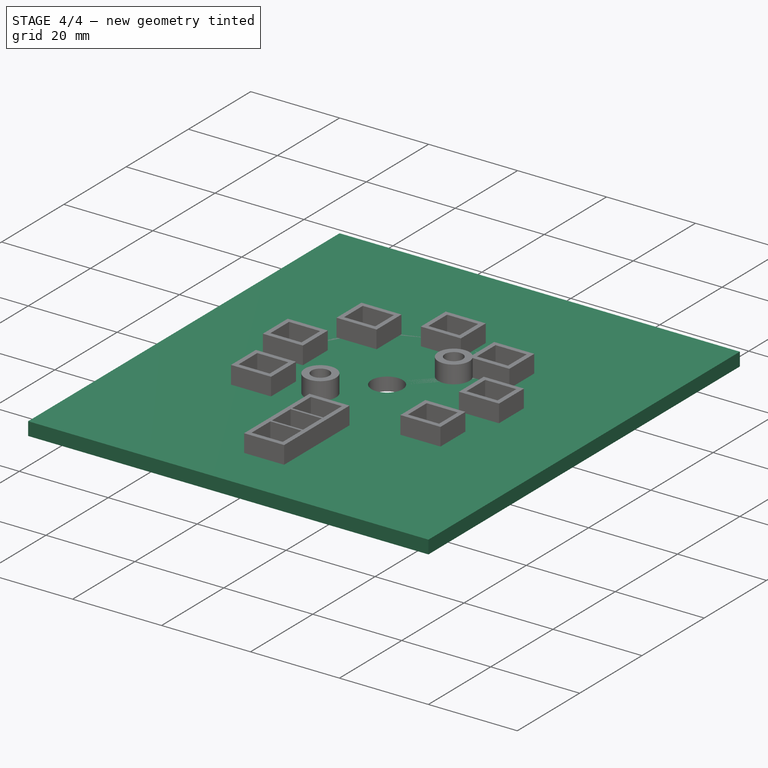
[diagram: stage 4 of 4 — iso view after this stage's code; geometry added in this stage tinted green]
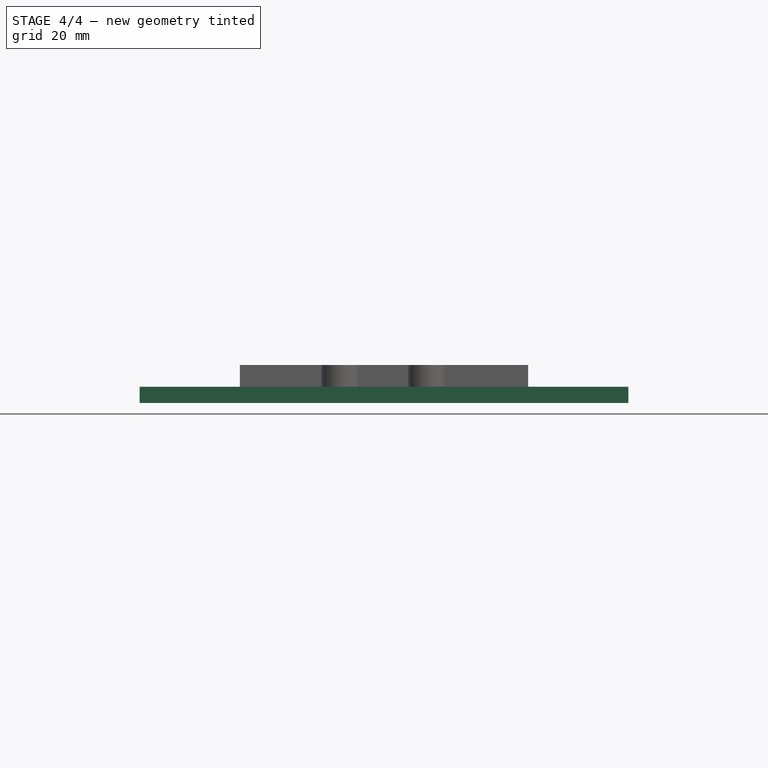
[diagram: stage 4 of 4 — front view after this stage's code; geometry added in this stage tinted green]
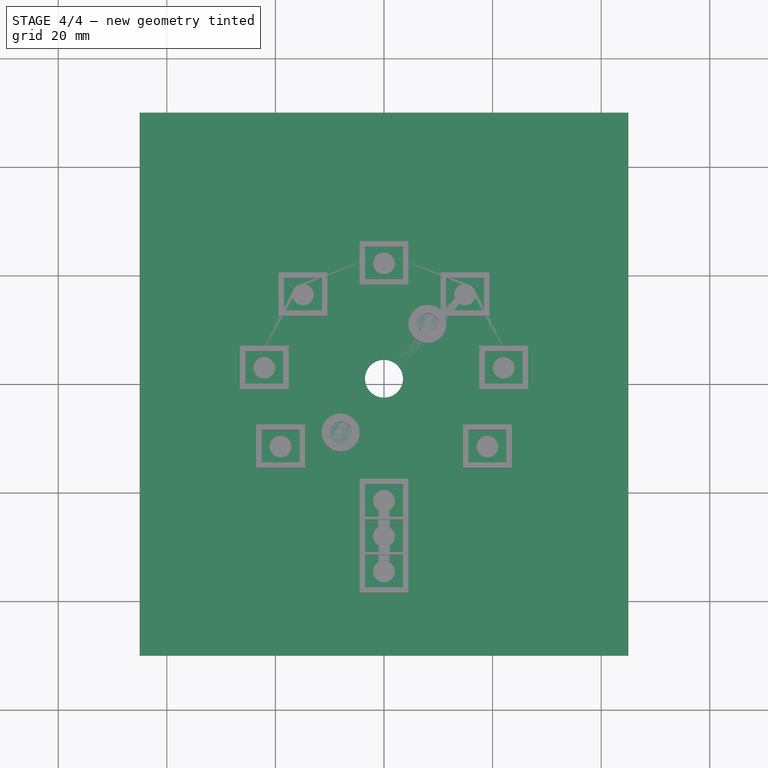
[diagram: stage 4 of 4 — top view after this stage's code; geometry added in this stage tinted green]
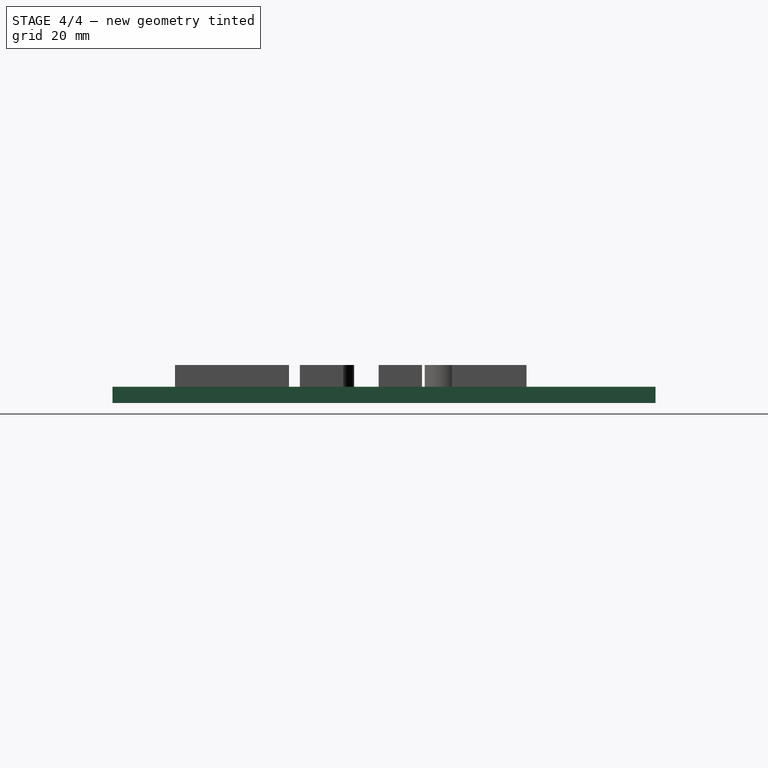
[diagram: stage 4 of 4 — right view after this stage's code; geometry added in this stage tinted green]
FEATURE [Sketcher::SketchObject] Sketch002
  ArcFitTolerance = 1e-06
  AttachmentSupport = -> [Pad001]
  FullyConstrained = true
  MakeInternals = false
  MapMode = 5
  Placement = pos=(0,0,5) rot=(0,0,1;0rad)
  sketch-geometry (1):
    g0: Circle CenterX=0 CenterY=1 CenterZ=0 NormalX=0 NormalY=0 NormalZ=1 AngleXU=0 Radius=3.5
  constraints (3):
    c: PointOnObject(g0,g-2)
    c: DistanceY(g-1,g0) = 1
    c: Diameter(g0) = 7
FEATURE [PartDesign::Pocket] Pocket
  BaseFeature = -> Pad001
  Direction = (0,0,-1)
  Length = 5
  Length2 = 5
  Profile = -> Sketch002
  ReferenceAxis = -> Sketch002 [N_Axis]
  Refine = true
  Suppressed = false
  Type = 0
FEATURE [PartDesign::Body] Body  label="Dummy"
  AllowCompound = true
  Group = -> [Sketch,Pad,Sketch001,Pad001,Sketch002,Pocket]
  Origin = -> Origin
  Tip = -> Pad001
FEATURE [Sketcher::SketchObject] Sketch003
  ArcFitTolerance = 1e-06
  AttachmentSupport = -> [XY_Plane001]
  FullyConstrained = true
  MakeInternals = false
  MapMode = 5
  sketch-geometry (4):
    g0: LineSegment StartX=-45 StartY=50 StartZ=0 EndX=-45 EndY=-50 EndZ=0
    g1: LineSegment StartX=-45 StartY=-50 StartZ=0 EndX=45 EndY=-50 EndZ=0
    g2: LineSegment StartX=45 StartY=-50 StartZ=0 EndX=45 EndY=50 EndZ=0
    g3: LineSegment StartX=45 StartY=50 StartZ=0 EndX=-45 EndY=50 EndZ=0
  constraints (11):
    c: Coincident(g0,g1)
    c: Coincident(g1,g2)
    c: Coincident(g2,g3)
    c: Coincident(g3,g0)
    c: Vertical(g0)
    c: Vertical(g2)
    c: Horizontal(g1)
    c: Horizontal(g3)
    c: Distance(g0,g2) = 90
    c: Distance(g1,g3) = 100
    c: Symmetric(g0,g2,g-1)
FEATURE [PartDesign::Pad] Pad002
  Direction = (0,0,1)
  Length = 3
  Length2 = 10
  Profile = -> Sketch003
  ReferenceAxis = -> Sketch003 [N_Axis]
  Refine = true
  Suppressed = false
  Type = 0
FEATURE [PartDesign::SubShapeBinder] Binder
  BindCopyOnChange = 0
  BindMode = 0
  ClaimChildren = false
  Context = -> Body001 [Binder.]
  Fuse = false
  MakeFace = true
  OffsetFill = false
  OffsetIntersection = false
  OffsetJoinType = 0
  OffsetOpenResult = false
  PartialLoad = false
  Refine = true
  Relative = true
  Support = -> [Body]
  _Version = 2
FEATURE [PartDesign::Boolean] Boolean
  BaseFeature = -> Pad002
  Group = -> [Binder]
  Refine = true
  Suppressed = false
  Type = 1
  UsePlacement = true
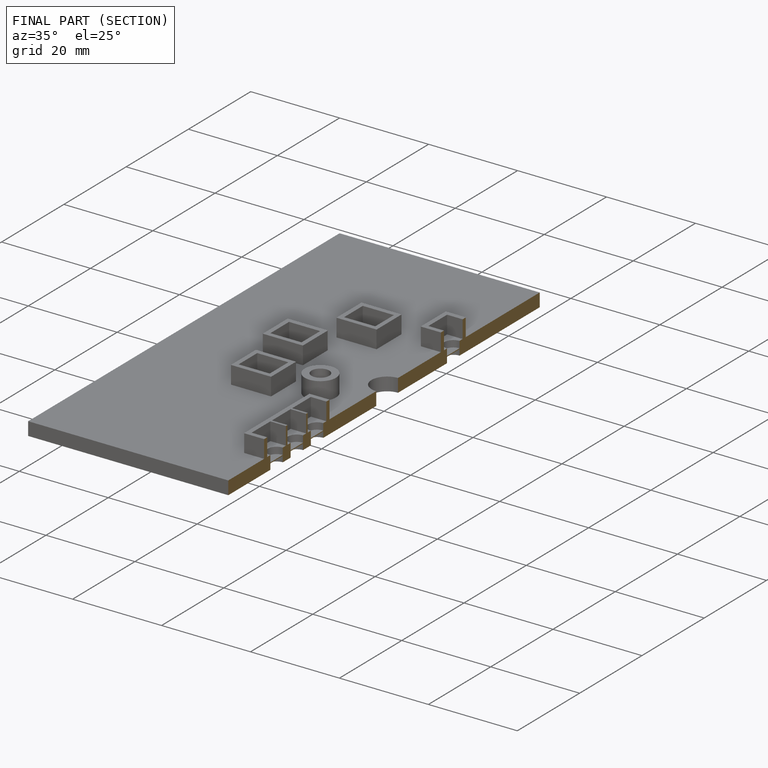
[diagram: finished part — half-section view (interior)]
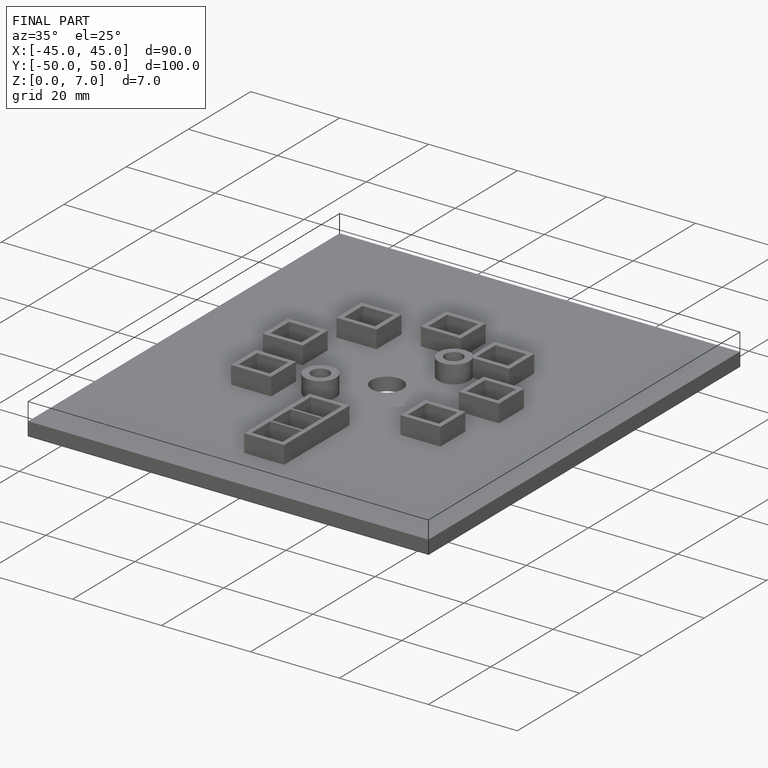
[diagram: finished part — iso view with bounding-box wireframe]
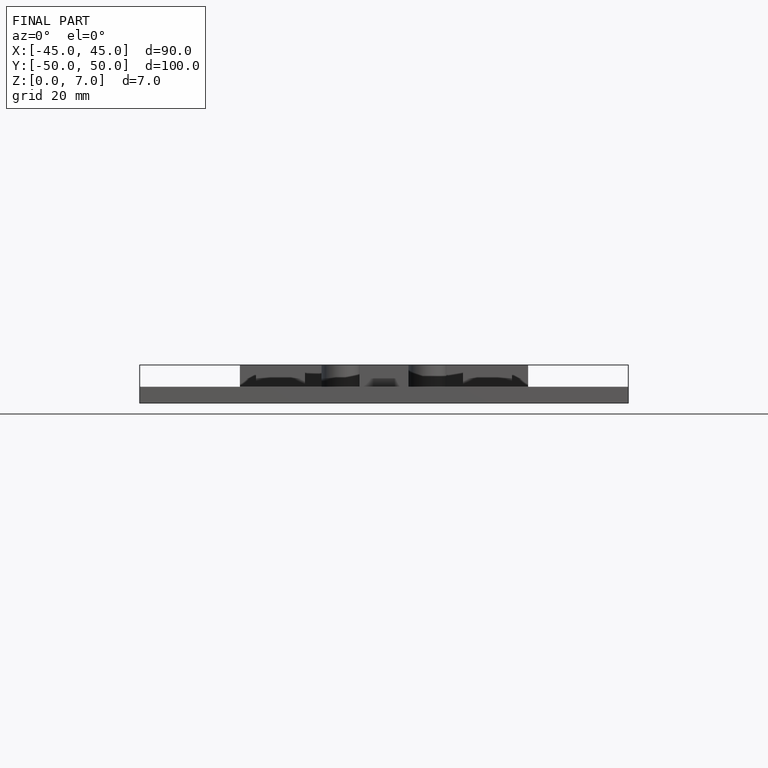
[diagram: finished part — front view with bounding-box wireframe]
